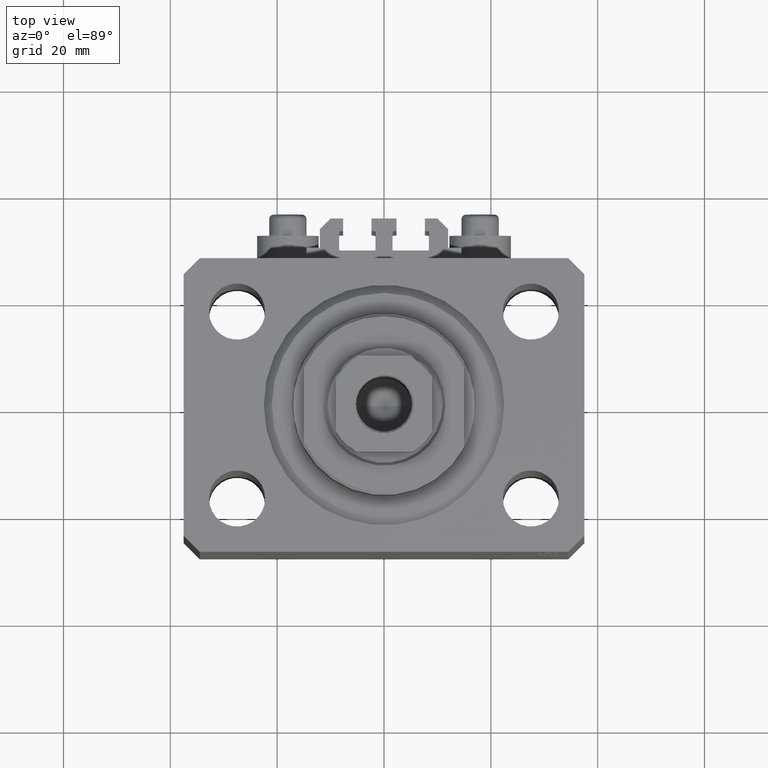
[diagram: clean part render]
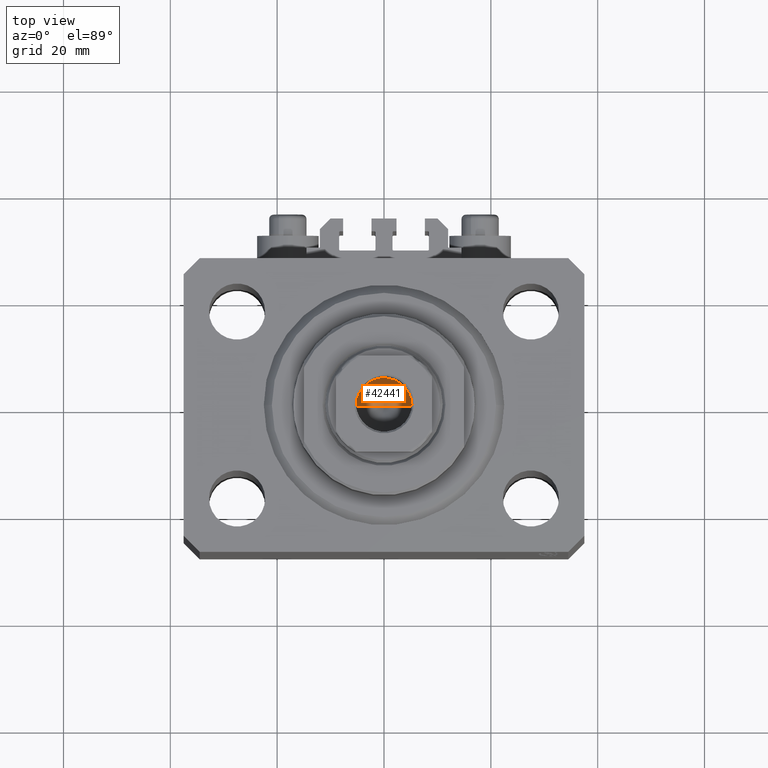
[diagram: same view with one face highlighted and labeled with its STEP entity id]
A machine part, top view. The second image highlights one B-rep face of the part: STEP entity #42441.
In plain terms, the highlighted conical surface has half-angle 59 deg.
Its self-contained STEP definition (entity closure, byte-faithful):
#2852 = CIRCLE ( 'NONE', #12065, 5.249999999999994671 ) ;
#3810 = CARTESIAN_POINT ( 'NONE',  ( 0.000000000000000000, 0.000000000000000000, 60.10000000000000853 ) ) ;
#3889 = CONICAL_SURFACE ( 'NONE', #43744, 5.249999999999994671, 1.029744258676653645 ) ;
#4138 = VECTOR ( 'NONE', #5252, 1000.000000000000000 ) ;
#5252 = DIRECTION ( 'NONE',  ( -0.8571673007021118895, 1.049727191138618079E-16, 0.5150380749100549327 ) ) ;
#5268 = ORIENTED_EDGE ( 'NONE', *, *, #33411, .F. ) ;
#6722 = ORIENTED_EDGE ( 'NONE', *, *, #22674, .T. ) ;
#8060 = EDGE_CURVE ( 'NONE', #17268, #25843, #2852, .T. ) ;
#8637 = CARTESIAN_POINT ( 'NONE',  ( 5.249999999999994671, 0.000000000000000000, 60.10000000000000853 ) ) ;
#8739 = DIRECTION ( 'NONE',  ( -0.000000000000000000, -0.000000000000000000, 1.000000000000000000 ) ) ;
#10538 = FACE_OUTER_BOUND ( 'NONE', #33044, .T. ) ;
#11532 = VECTOR ( 'NONE', #23313, 1000.000000000000000 ) ;
#12065 = AXIS2_PLACEMENT_3D ( 'NONE', #3810, #8739, #29722 ) ;
#17268 = VERTEX_POINT ( 'NONE', #43246 ) ;
#22674 = EDGE_CURVE ( 'NONE', #25403, #17268, #41548, .T. ) ;
#22813 = LINE ( 'NONE', #27102, #4138 ) ;
#23313 = DIRECTION ( 'NONE',  ( 0.8571673007021118895, 0.000000000000000000, 0.5150380749100549327 ) ) ;
#25403 = VERTEX_POINT ( 'NONE', #38329 ) ;
#25843 = VERTEX_POINT ( 'NONE', #29057 ) ;
#27102 = CARTESIAN_POINT ( 'NONE',  ( -5.249999999999994671, 6.429395695523597250E-16, 60.10000000000000853 ) ) ;
#28557 = CARTESIAN_POINT ( 'NONE',  ( 0.000000000000000000, 0.000000000000000000, 60.10000000000000853 ) ) ;
#29057 = CARTESIAN_POINT ( 'NONE',  ( -5.249999999999994671, 6.429395695523597250E-16, 60.10000000000000853 ) ) ;
#29722 = DIRECTION ( 'NONE',  ( 1.000000000000000000, 0.000000000000000000, 0.000000000000000000 ) ) ;
#33044 = EDGE_LOOP ( 'NONE', ( #5268, #6722, #46871 ) ) ;
#33411 = EDGE_CURVE ( 'NONE', #25403, #25843, #22813, .T. ) ;
#38329 = CARTESIAN_POINT ( 'NONE',  ( -6.783656367213677939E-15, 0.000000000000000000, 56.94548175010531565 ) ) ;
#39848 = DIRECTION ( 'NONE',  ( -0.000000000000000000, -0.000000000000000000, 1.000000000000000000 ) ) ;
#41548 = LINE ( 'NONE', #8637, #11532 ) ;
#42441 = ADVANCED_FACE ( 'NONE', ( #10538 ), #3889, .F. ) ;
#43211 = DIRECTION ( 'NONE',  ( 1.000000000000000000, 0.000000000000000000, 0.000000000000000000 ) ) ;
#43246 = CARTESIAN_POINT ( 'NONE',  ( 5.249999999999994671, 0.000000000000000000, 60.10000000000000853 ) ) ;
#43744 = AXIS2_PLACEMENT_3D ( 'NONE', #28557, #39848, #43211 ) ;
#46871 = ORIENTED_EDGE ( 'NONE', *, *, #8060, .T. ) ;